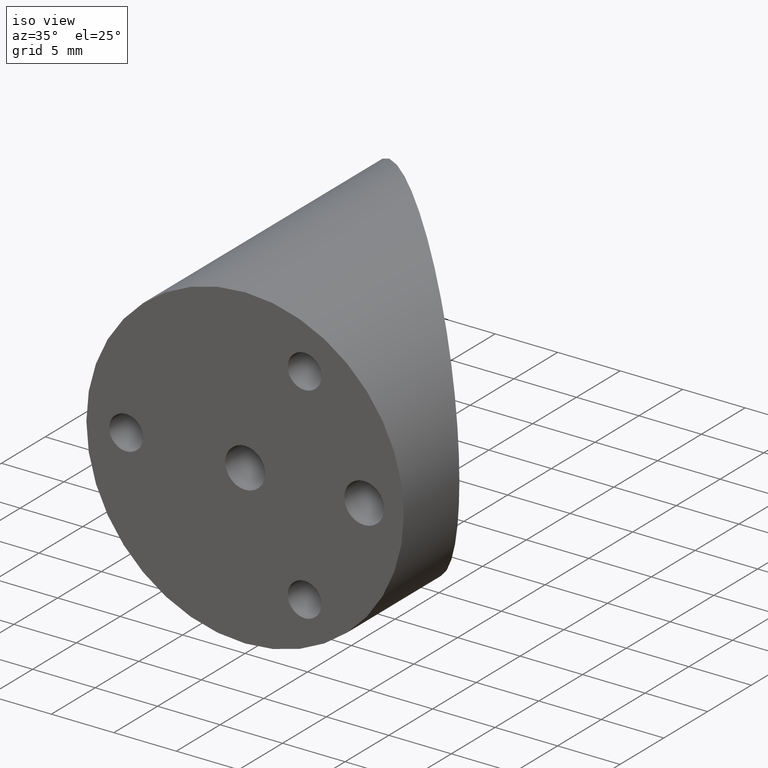
[diagram: clean part render]
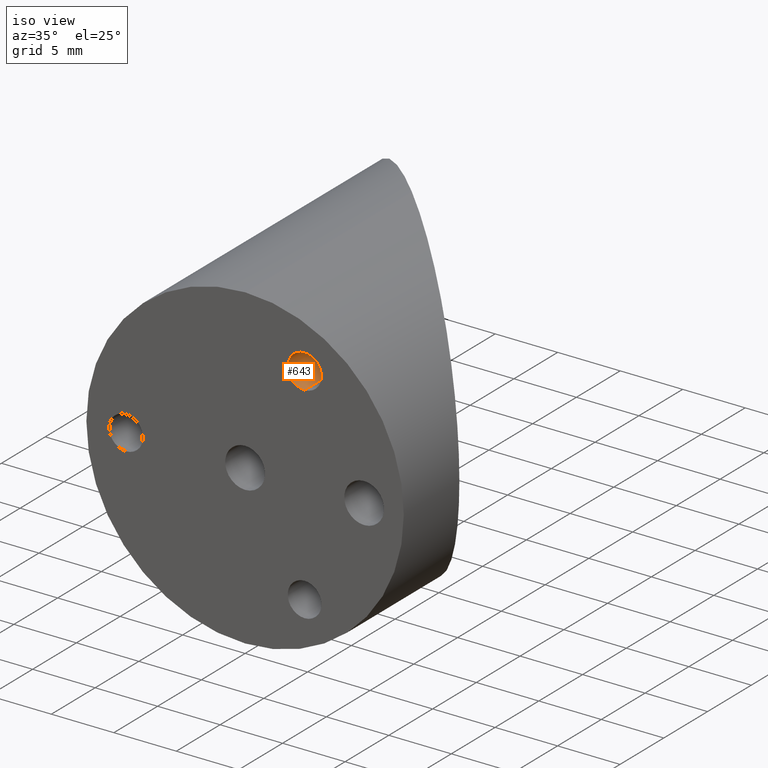
[diagram: same view with one face highlighted and labeled with its STEP entity id]
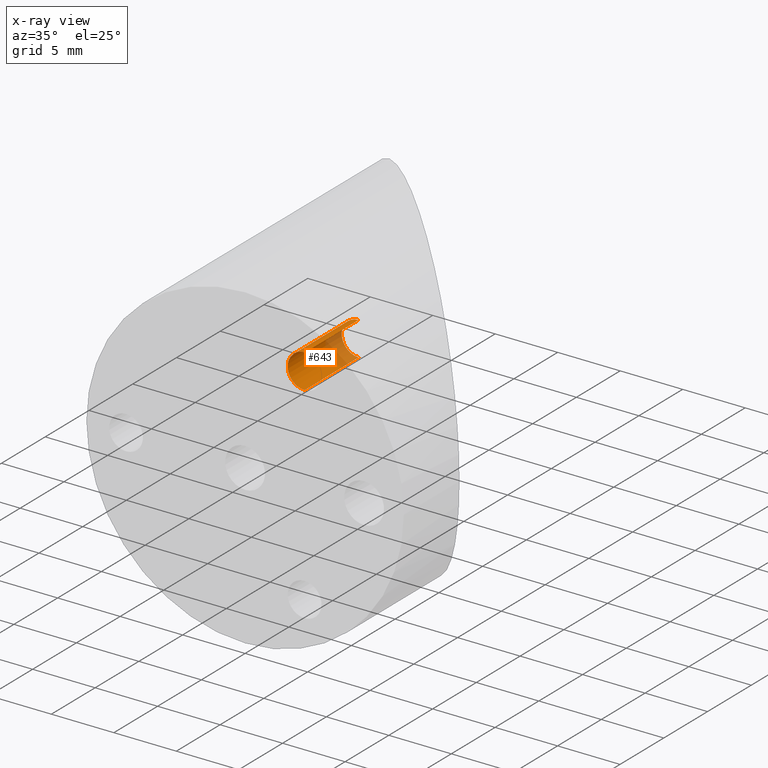
[diagram: x-ray of the same camera — body ghosted, the highlighted face saturated]
A machine part, iso view. The second image highlights one B-rep face of the part: STEP entity #643.
The next image is the same camera in x-ray: the body ghosted, the highlighted face saturated — about 26% of this face is hidden behind the body in this view.
In plain terms, the highlighted cylindrical surface (edge-blend (fillet) strip) has radius 1.3525 mm, axis along (-0, -1, -0).
Its self-contained STEP definition (entity closure, byte-faithful):
#23 = CARTESIAN_POINT ( 'NONE',  ( 4.762500000000009948, 6.169999999999999929, 9.601441971046769552 ) ) ;
#58 = VERTEX_POINT ( 'NONE', #144 ) ;
#79 = ORIENTED_EDGE ( 'NONE', *, *, #136, .T. ) ;
#118 = DIRECTION ( 'NONE',  ( 0.0000000000000000000, 0.0000000000000000000, -1.000000000000000000 ) ) ;
#136 = EDGE_CURVE ( 'NONE', #58, #780, #640, .T. ) ;
#144 = CARTESIAN_POINT ( 'NONE',  ( 4.762500000000009948, 2.721777511104993564E-17, 9.601441971046771329 ) ) ;
#147 = CIRCLE ( 'NONE', #722, 1.352549999999998365 ) ;
#155 = DIRECTION ( 'NONE',  ( 0.0000000000000000000, 0.0000000000000000000, -1.000000000000000000 ) ) ;
#169 = VECTOR ( 'NONE', #783, 1000.000000000000000 ) ;
#211 = ORIENTED_EDGE ( 'NONE', *, *, #559, .F. ) ;
#214 = DIRECTION ( 'NONE',  ( -0.0000000000000000000, -1.000000000000000000, -0.0000000000000000000 ) ) ;
#217 = CARTESIAN_POINT ( 'NONE',  ( 4.762500000000009948, 0.0000000000000000000, 8.248891971046772298 ) ) ;
#228 = LINE ( 'NONE', #408, #169 ) ;
#251 = FACE_OUTER_BOUND ( 'NONE', #489, .T. ) ;
#262 = ORIENTED_EDGE ( 'NONE', *, *, #648, .F. ) ;
#299 = CARTESIAN_POINT ( 'NONE',  ( 4.762500000000009948, 6.169999999999999929, 8.248891971046772298 ) ) ;
#315 = CARTESIAN_POINT ( 'NONE',  ( 4.762500000000009948, 6.169999999999999929, 6.896341971046773267 ) ) ;
#329 = AXIS2_PLACEMENT_3D ( 'NONE', #217, #520, #484 ) ;
#342 = EDGE_CURVE ( 'NONE', #760, #58, #698, .T. ) ;
#361 = DIRECTION ( 'NONE',  ( -0.0000000000000000000, -1.000000000000000000, -0.0000000000000000000 ) ) ;
#392 = AXIS2_PLACEMENT_3D ( 'NONE', #644, #214, #155 ) ;
#408 = CARTESIAN_POINT ( 'NONE',  ( 4.762500000000009948, 0.0000000000000000000, 6.896341971046772379 ) ) ;
#454 = CARTESIAN_POINT ( 'NONE',  ( 4.762500000000009948, 2.721777511104993564E-17, 6.896341971046772379 ) ) ;
#484 = DIRECTION ( 'NONE',  ( 0.0000000000000000000, 0.0000000000000000000, -1.000000000000000000 ) ) ;
#488 = CYLINDRICAL_SURFACE ( 'NONE', #329, 1.352549999999999253 ) ;
#489 = EDGE_LOOP ( 'NONE', ( #262, #652, #79, #211 ) ) ;
#520 = DIRECTION ( 'NONE',  ( -0.0000000000000000000, -1.000000000000000000, -0.0000000000000000000 ) ) ;
#559 = EDGE_CURVE ( 'NONE', #758, #780, #228, .T. ) ;
#629 = DIRECTION ( 'NONE',  ( -0.0000000000000000000, -1.000000000000000000, -0.0000000000000000000 ) ) ;
#640 = CIRCLE ( 'NONE', #392, 1.352549999999999253 ) ;
#643 = ADVANCED_FACE ( 'NONE', ( #251 ), #488, .F. ) ;
#644 = CARTESIAN_POINT ( 'NONE',  ( 4.762500000000009948, 2.721777511104993564E-17, 8.248891971046772298 ) ) ;
#648 = EDGE_CURVE ( 'NONE', #760, #758, #147, .T. ) ;
#652 = ORIENTED_EDGE ( 'NONE', *, *, #342, .T. ) ;
#679 = VECTOR ( 'NONE', #629, 1000.000000000000000 ) ;
#698 = LINE ( 'NONE', #761, #679 ) ;
#722 = AXIS2_PLACEMENT_3D ( 'NONE', #299, #361, #118 ) ;
#758 = VERTEX_POINT ( 'NONE', #315 ) ;
#760 = VERTEX_POINT ( 'NONE', #23 ) ;
#761 = CARTESIAN_POINT ( 'NONE',  ( 4.762500000000009948, 0.0000000000000000000, 9.601441971046771329 ) ) ;
#780 = VERTEX_POINT ( 'NONE', #454 ) ;
#783 = DIRECTION ( 'NONE',  ( -0.0000000000000000000, -1.000000000000000000, -0.0000000000000000000 ) ) ;